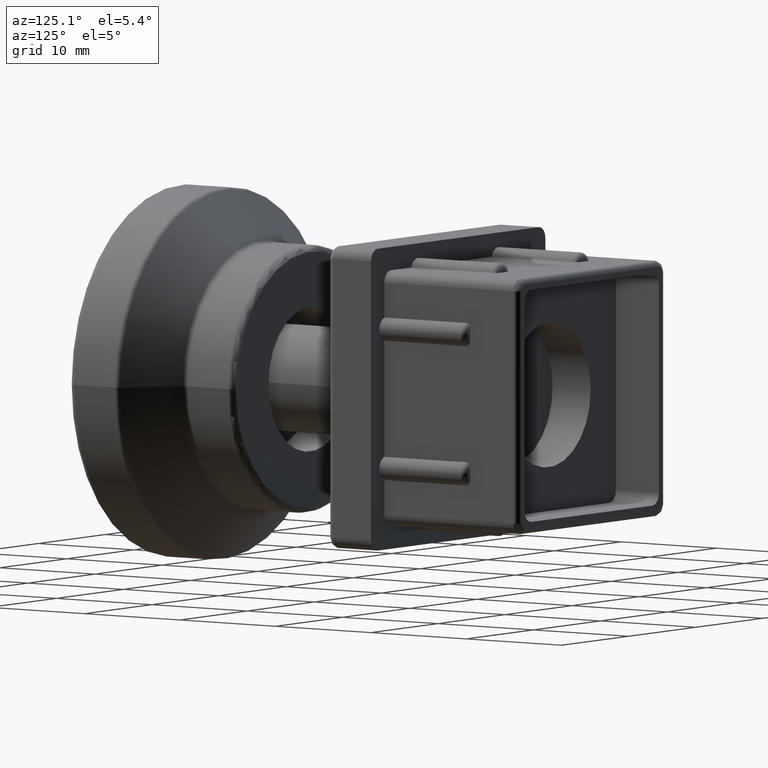
[diagram: clean part render]
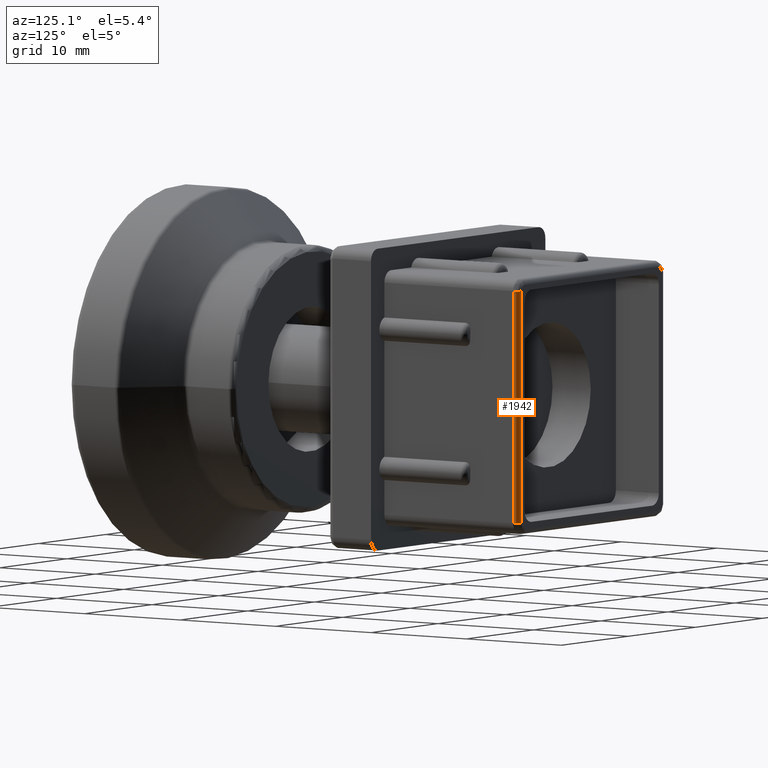
[diagram: same view with one face highlighted and labeled with its STEP entity id]
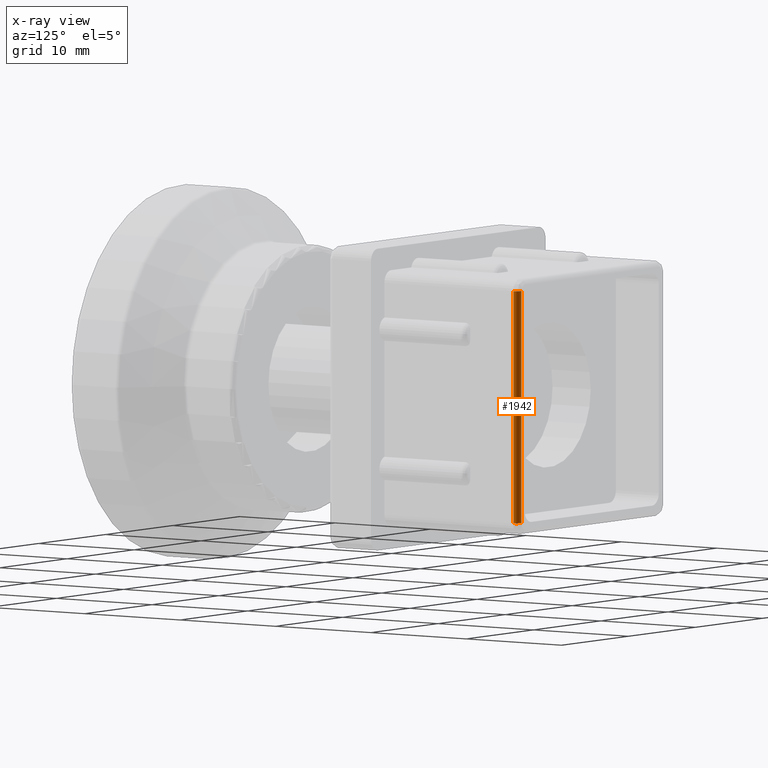
[diagram: x-ray of the same camera — body ghosted, the highlighted face saturated]
A machine part, auxiliary view. The second image highlights one B-rep face of the part: STEP entity #1942.
The next image is the same camera in x-ray: the body ghosted, the highlighted face saturated — about 0% of this face is hidden behind the body in this view.
In plain terms, the highlighted cylindrical surface (edge-blend (fillet) strip) has radius 0.5 mm, axis along (-0, 0, -1).
Its self-contained STEP definition (entity closure, byte-faithful):
#151=CIRCLE('',#2147,0.5);
#154=CIRCLE('',#2151,0.5);
#331=FACE_OUTER_BOUND('',#468,.T.);
#468=EDGE_LOOP('',(#1656,#1657,#1658,#1659));
#568=LINE('',#3419,#696);
#610=LINE('',#3621,#738);
#696=VECTOR('',#2525,20.);
#738=VECTOR('',#2669,20.);
#902=VERTEX_POINT('',#3416);
#903=VERTEX_POINT('',#3418);
#948=VERTEX_POINT('',#3614);
#949=VERTEX_POINT('',#3619);
#1129=EDGE_CURVE('',#903,#902,#568,.T.);
#1201=EDGE_CURVE('',#948,#902,#151,.T.);
#1204=EDGE_CURVE('',#949,#903,#154,.T.);
#1205=EDGE_CURVE('',#948,#949,#610,.T.);
#1656=ORIENTED_EDGE('',*,*,#1204,.T.);
#1657=ORIENTED_EDGE('',*,*,#1129,.T.);
#1658=ORIENTED_EDGE('',*,*,#1201,.F.);
#1659=ORIENTED_EDGE('',*,*,#1205,.T.);
#1835=CYLINDRICAL_SURFACE('',#2150,0.5);
#1942=ADVANCED_FACE('',(#331),#1835,.T.);
#2147=AXIS2_PLACEMENT_3D('',#3615,#2659,#2660);
#2150=AXIS2_PLACEMENT_3D('',#3618,#2665,#2666);
#2151=AXIS2_PLACEMENT_3D('',#3620,#2667,#2668);
#2525=DIRECTION('',(-3.02788097625043E-16,0.,-1.));
#2659=DIRECTION('center_axis',(0.,0.,-1.));
#2660=DIRECTION('ref_axis',(0.,1.,0.));
#2665=DIRECTION('center_axis',(-3.02788097625043E-16,0.,-1.));
#2666=DIRECTION('ref_axis',(0.707106781186548,0.707106781186548,0.));
#2667=DIRECTION('center_axis',(0.,0.,-1.));
#2668=DIRECTION('ref_axis',(0.,1.,0.));
#2669=DIRECTION('',(3.02788097625043E-16,0.,1.));
#3416=CARTESIAN_POINT('',(11.,13.5,-10.));
#3418=CARTESIAN_POINT('',(11.,13.5,10.));
#3419=CARTESIAN_POINT('',(11.,13.5,5.5));
#3614=CARTESIAN_POINT('',(10.5,14.,-10.));
#3615=CARTESIAN_POINT('Origin',(10.5,13.5,-10.));
#3618=CARTESIAN_POINT('Origin',(10.5,13.5,5.5));
#3619=CARTESIAN_POINT('',(10.5,14.,10.));
#3620=CARTESIAN_POINT('Origin',(10.5,13.5,10.));
#3621=CARTESIAN_POINT('',(10.5,14.,5.5));